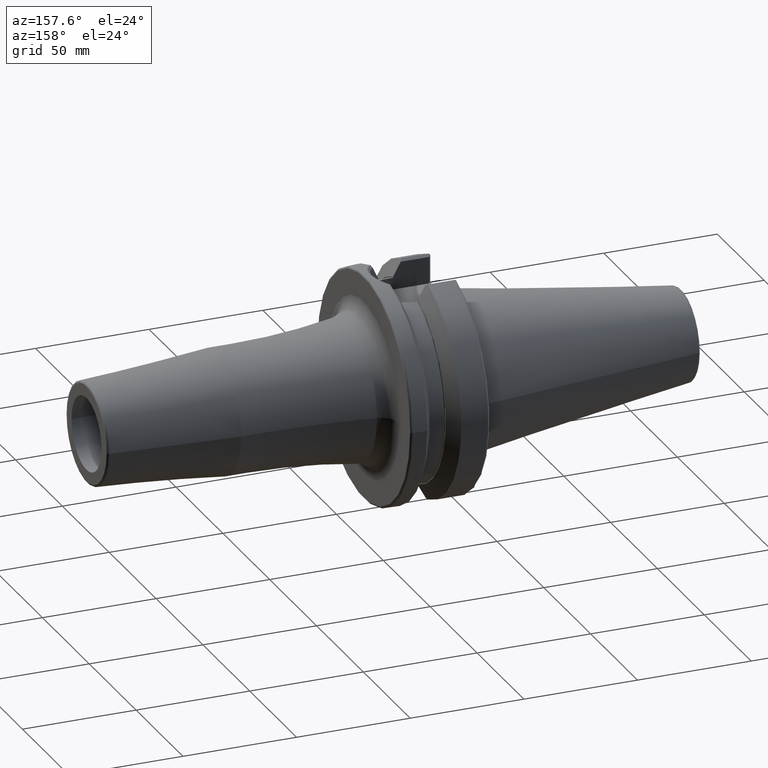
[diagram: clean part render]
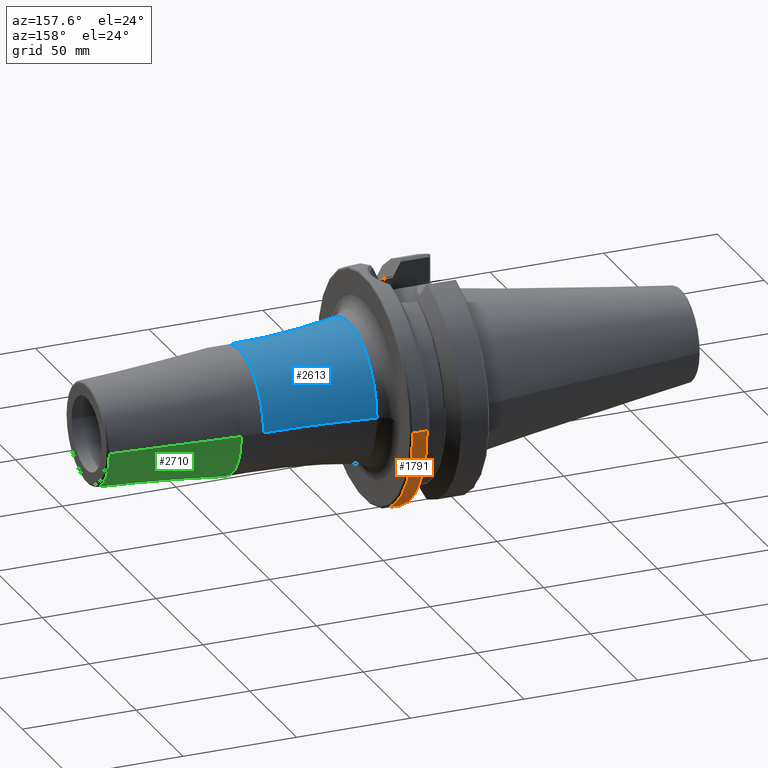
[diagram: same view with three faces highlighted in distinct colors, each labeled with its STEP entity id]
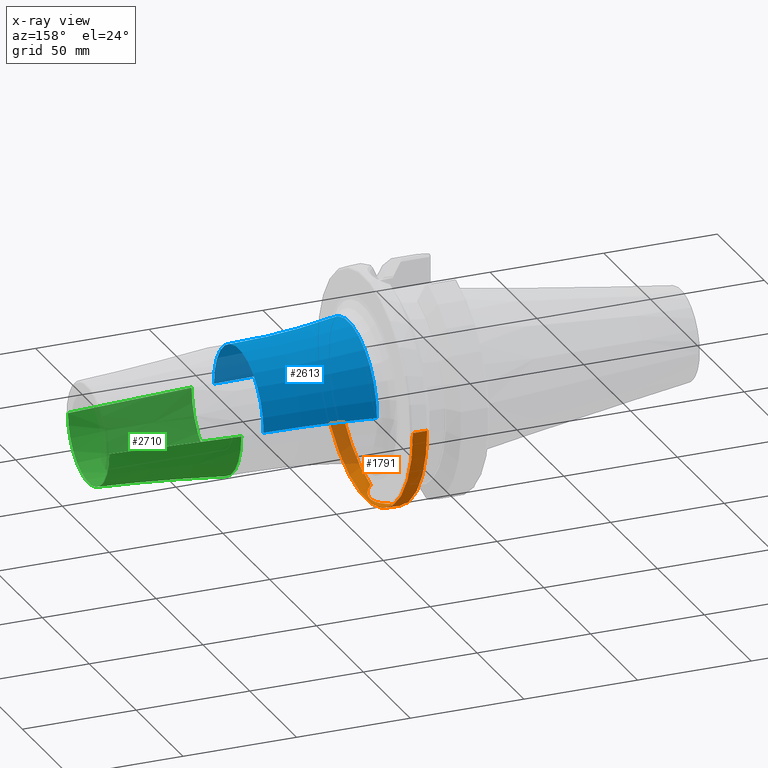
[diagram: x-ray of the same camera — body ghosted, the three highlighted faces saturated]
A machine part, auxiliary view with three faces highlighted in distinct colors.
The next image is the same camera in x-ray (body ghosted, the three faces saturated) — at least one of them is partly hidden behind the body in this view.
Their STEP definitions:

[orange] entity #1791 — the highlighted cylindrical surface (partial cylindrical patch) has radius 49.9875 mm, axis along (1, 0, 0).
#245=CARTESIAN_POINT('',(3.073066823617E1,0.E0,0.E0));
#246=DIRECTION('',(1.E0,0.E0,0.E0));
#247=DIRECTION('',(0.E0,-1.E0,0.E0));
#248=AXIS2_PLACEMENT_3D('',#245,#246,#247);
#250=DIRECTION('',(-1.E0,0.E0,0.E0));
#251=VECTOR('',#250,6.269331763825E0);
#252=CARTESIAN_POINT('',(3.7E1,-4.99875E1,0.E0));
#253=LINE('',#252,#251);
#254=CARTESIAN_POINT('',(3.7E1,0.E0,0.E0));
#255=DIRECTION('',(-1.E0,0.E0,0.E0));
#256=DIRECTION('',(0.E0,1.E0,0.E0));
#257=AXIS2_PLACEMENT_3D('',#254,#255,#256);
#259=DIRECTION('',(-1.E0,0.E0,0.E0));
#260=VECTOR('',#259,6.269331763825E0);
#261=CARTESIAN_POINT('',(3.7E1,4.99875E1,0.E0));
#262=LINE('',#261,#260);
#263=CARTESIAN_POINT('',(3.073066823617E1,0.E0,0.E0));
#264=DIRECTION('',(1.E0,0.E0,0.E0));
#265=DIRECTION('',(0.E0,2.049238320147E-1,-9.787779232657E-1));
#266=AXIS2_PLACEMENT_3D('',#263,#264,#265);
#268=CARTESIAN_POINT('',(3.073066823617E1,-1.024362896192E1,-4.892666166765E1));
#269=CARTESIAN_POINT('',(3.098270283187E1,-1.001417718341E1,-4.897470211605E1));
#270=CARTESIAN_POINT('',(3.169166615887E1,-9.319400396050E0,-4.911525921509E1));
#271=CARTESIAN_POINT('',(3.273084485343E1,-8.053271971541E0,-4.934320333096E1));
#272=CARTESIAN_POINT('',(3.373604925811E1,-6.403749543948E0,-4.958561427133E1));
#273=CARTESIAN_POINT('',(3.449815557842E1,-4.642881969044E0,-4.978242400372E1));
#274=CARTESIAN_POINT('',(3.500885094483E1,-2.803177447712E0,-4.992052659569E1));
#275=CARTESIAN_POINT('',(3.526301129761E1,-9.171953499314E-1,
-4.999110779315E1));
#276=CARTESIAN_POINT('',(3.525845754566E1,9.841660632756E-1,-4.998983236145E1));
#277=CARTESIAN_POINT('',(3.499510022915E1,2.869497687983E0,-4.991674285500E1));
#278=CARTESIAN_POINT('',(3.447534098345E1,4.706993512578E0,-4.977637056974E1));
#279=CARTESIAN_POINT('',(3.370445493838E1,6.464420400783E0,-4.957769692922E1));
#280=CARTESIAN_POINT('',(3.269088982289E1,8.109294467286E0,-4.933397361508E1));
#281=CARTESIAN_POINT('',(3.165982070584E1,9.352836362394E0,-4.910869672587E1));
#282=CARTESIAN_POINT('',(3.096569258413E1,1.002967890474E1,-4.897145777206E1));
#283=CARTESIAN_POINT('',(3.073066823617E1,1.024363005283E1,-4.892666143925E1));
#1244=CARTESIAN_POINT('',(3.073066823617E1,4.99875E1,0.E0));
#1246=VERTEX_POINT('',#1244);
#1248=CARTESIAN_POINT('',(3.073066823617E1,-4.99875E1,-1.224340637448E-14));
#1249=CARTESIAN_POINT('',(3.073066823617E1,-1.024362896192E1,
-4.892666166765E1));
#1250=VERTEX_POINT('',#1248);
#1251=VERTEX_POINT('',#1249);
#1252=CARTESIAN_POINT('',(3.7E1,4.99875E1,0.E0));
#1253=VERTEX_POINT('',#1252);
#1254=CARTESIAN_POINT('',(3.7E1,-4.99875E1,0.E0));
#1255=VERTEX_POINT('',#1254);
#1258=CARTESIAN_POINT('',(3.073066823617E1,1.024363005283E1,-4.892666143925E1));
#1259=VERTEX_POINT('',#1258);
#1772=CARTESIAN_POINT('',(-1.0879E2,0.E0,0.E0));
#1773=DIRECTION('',(1.E0,0.E0,0.E0));
#1774=DIRECTION('',(0.E0,-1.E0,0.E0));
#1775=AXIS2_PLACEMENT_3D('',#1772,#1773,#1774);
#1776=CYLINDRICAL_SURFACE('',#1775,4.99875E1);
#1778=ORIENTED_EDGE('',*,*,#1777,.F.);
#1780=ORIENTED_EDGE('',*,*,#1779,.F.);
#1782=ORIENTED_EDGE('',*,*,#1781,.F.);
#1784=ORIENTED_EDGE('',*,*,#1783,.T.);
#1786=ORIENTED_EDGE('',*,*,#1785,.F.);
#1788=ORIENTED_EDGE('',*,*,#1787,.F.);
#1789=EDGE_LOOP('',(#1778,#1780,#1782,#1784,#1786,#1788));
#1790=FACE_OUTER_BOUND('',#1789,.F.);
#1791=ADVANCED_FACE('',(#1790),#1776,.T.);
#249=CIRCLE('',#248,4.99875E1);
#258=CIRCLE('',#257,4.99875E1);
#267=CIRCLE('',#266,4.99875E1);
#284=B_SPLINE_CURVE_WITH_KNOTS('',3,(#268,#269,#270,#271,#272,#273,#274,#275,
#276,#277,#278,#279,#280,#281,#282,#283),.UNSPECIFIED.,.F.,.F.,(4,1,1,1,1,1,1,1,
1,1,1,1,1,4),(0.E0,4.360500285610E-2,1.268542736082E-1,2.101035443602E-1,
2.933528151123E-1,3.766020858644E-1,4.598513566164E-1,5.431006273685E-1,
6.263498981206E-1,7.095991688726E-1,7.928484396247E-1,8.760977103768E-1,
9.593469811288E-1,1.E0),.UNSPECIFIED.);
#1777=EDGE_CURVE('',#1250,#1251,#249,.T.);
#1779=EDGE_CURVE('',#1255,#1250,#253,.T.);
#1781=EDGE_CURVE('',#1253,#1255,#258,.T.);
#1783=EDGE_CURVE('',#1253,#1246,#262,.T.);
#1785=EDGE_CURVE('',#1259,#1246,#267,.T.);
#1787=EDGE_CURVE('',#1251,#1259,#284,.T.);

[blue] entity #2613 — the highlighted toroidal blend (fillet) surface has major radius 326.5 mm and minor (blend) radius 300 mm.
#854=CARTESIAN_POINT('',(4.471232876712E1,0.E0,0.E0));
#855=DIRECTION('',(1.E0,0.E0,0.E0));
#856=DIRECTION('',(0.E0,1.E0,0.E0));
#857=AXIS2_PLACEMENT_3D('',#854,#855,#856);
#864=CARTESIAN_POINT('',(9.3E1,-3.265E2,-7.996943598432E-14));
#865=DIRECTION('',(0.E0,0.E0,1.E0));
#866=DIRECTION('',(0.E0,1.E0,0.E0));
#867=AXIS2_PLACEMENT_3D('',#864,#865,#866);
#869=CARTESIAN_POINT('',(9.3E1,3.265E2,3.998471799216E-14));
#870=DIRECTION('',(0.E0,0.E0,-1.E0));
#871=DIRECTION('',(0.E0,-1.E0,0.E0));
#872=AXIS2_PLACEMENT_3D('',#869,#870,#871);
#892=CARTESIAN_POINT('',(9.3E1,0.E0,0.E0));
#893=DIRECTION('',(1.E0,0.E0,0.E0));
#894=DIRECTION('',(0.E0,1.E0,0.E0));
#895=AXIS2_PLACEMENT_3D('',#892,#893,#894);
#1435=CARTESIAN_POINT('',(4.471232876712E1,-3.041166722259E1,0.E0));
#1436=CARTESIAN_POINT('',(4.471232876712E1,3.041166722259E1,0.E0));
#1437=VERTEX_POINT('',#1435);
#1438=VERTEX_POINT('',#1436);
#1439=CARTESIAN_POINT('',(9.3E1,2.65E1,0.E0));
#1440=VERTEX_POINT('',#1439);
#1441=CARTESIAN_POINT('',(9.3E1,-2.65E1,0.E0));
#1442=VERTEX_POINT('',#1441);
#2599=CARTESIAN_POINT('',(9.3E1,0.E0,0.E0));
#2600=DIRECTION('',(1.E0,0.E0,0.E0));
#2601=DIRECTION('',(0.E0,-1.E0,0.E0));
#2602=AXIS2_PLACEMENT_3D('',#2599,#2600,#2601);
#2603=TOROIDAL_SURFACE('',#2602,3.265E2,3.E2);
#2604=ORIENTED_EDGE('',*,*,#2593,.F.);
#2606=ORIENTED_EDGE('',*,*,#2605,.F.);
#2608=ORIENTED_EDGE('',*,*,#2607,.T.);
#2610=ORIENTED_EDGE('',*,*,#2609,.T.);
#2611=EDGE_LOOP('',(#2604,#2606,#2608,#2610));
#2612=FACE_OUTER_BOUND('',#2611,.F.);
#2613=ADVANCED_FACE('',(#2612),#2603,.F.);
#858=CIRCLE('',#857,3.041166722259E1);
#868=CIRCLE('',#867,3.E2);
#873=CIRCLE('',#872,3.E2);
#896=CIRCLE('',#895,2.65E1);
#2593=EDGE_CURVE('',#1438,#1437,#858,.T.);
#2605=EDGE_CURVE('',#1440,#1438,#873,.T.);
#2607=EDGE_CURVE('',#1440,#1442,#896,.T.);
#2609=EDGE_CURVE('',#1442,#1437,#868,.T.);

[green] entity #2710 — the highlighted conical surface has half-angle 4.5 deg.
#883=CARTESIAN_POINT('',(1.028220786872E2,0.E0,0.E0));
#884=DIRECTION('',(-1.E0,0.E0,0.E0));
#885=DIRECTION('',(0.E0,1.E0,0.E0));
#886=AXIS2_PLACEMENT_3D('',#883,#884,#885);
#917=CARTESIAN_POINT('',(1.590784590957E2,0.E0,0.E0));
#918=DIRECTION('',(-1.E0,0.E0,0.E0));
#919=DIRECTION('',(0.E0,1.E0,0.E0));
#920=AXIS2_PLACEMENT_3D('',#917,#918,#919);
#922=DIRECTION('',(-9.969173337331E-1,7.845909572785E-2,2.372476685320E-14));
#923=VECTOR('',#922,5.643033630266E1);
#924=CARTESIAN_POINT('',(1.590784590957E2,2.207252684207E1,
-1.335551258211E-12));
#925=LINE('',#924,#923);
#926=DIRECTION('',(-9.969173337331E-1,-7.845909572785E-2,-2.371279144639E-14));
#927=VECTOR('',#926,5.643033630266E1);
#928=CARTESIAN_POINT('',(1.590784590957E2,-2.207252684207E1,
1.334875481977E-12));
#929=LINE('',#928,#927);
#1411=CARTESIAN_POINT('',(1.028220786872E2,2.65E1,0.E0));
#1412=CARTESIAN_POINT('',(1.028220786872E2,-2.65E1,0.E0));
#1413=VERTEX_POINT('',#1411);
#1414=VERTEX_POINT('',#1412);
#1423=CARTESIAN_POINT('',(1.590784590957E2,2.207252684207E1,0.E0));
#1424=CARTESIAN_POINT('',(1.590784590957E2,-2.207252684207E1,0.E0));
#1425=VERTEX_POINT('',#1423);
#1426=VERTEX_POINT('',#1424);
#2699=CARTESIAN_POINT('',(1.309502688915E2,0.E0,0.E0));
#2700=DIRECTION('',(-1.E0,0.E0,0.E0));
#2701=DIRECTION('',(0.E0,1.E0,0.E0));
#2702=AXIS2_PLACEMENT_3D('',#2699,#2700,#2701);
#2703=CONICAL_SURFACE('',#2702,2.428626342104E1,4.5E0);
#2704=ORIENTED_EDGE('',*,*,#2690,.F.);
#2705=ORIENTED_EDGE('',*,*,#2665,.T.);
#2706=ORIENTED_EDGE('',*,*,#2635,.T.);
#2707=ORIENTED_EDGE('',*,*,#2662,.F.);
#2708=EDGE_LOOP('',(#2704,#2705,#2706,#2707));
#2709=FACE_OUTER_BOUND('',#2708,.F.);
#2710=ADVANCED_FACE('',(#2709),#2703,.T.);
#887=CIRCLE('',#886,2.65E1);
#921=CIRCLE('',#920,2.207252684207E1);
#2635=EDGE_CURVE('',#1413,#1414,#887,.T.);
#2662=EDGE_CURVE('',#1426,#1414,#929,.T.);
#2665=EDGE_CURVE('',#1425,#1413,#925,.T.);
#2690=EDGE_CURVE('',#1425,#1426,#921,.T.);